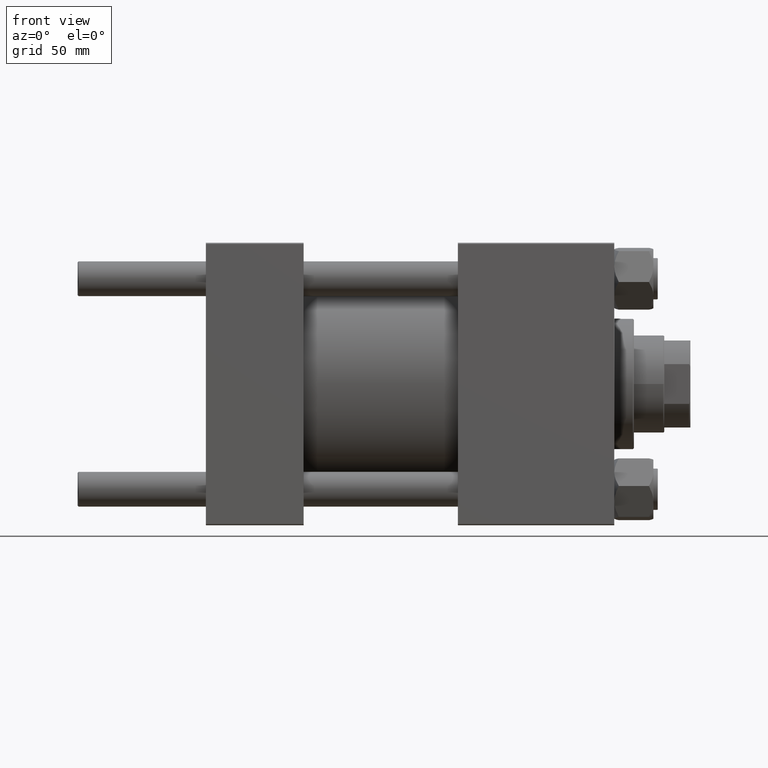
[diagram: clean part render]
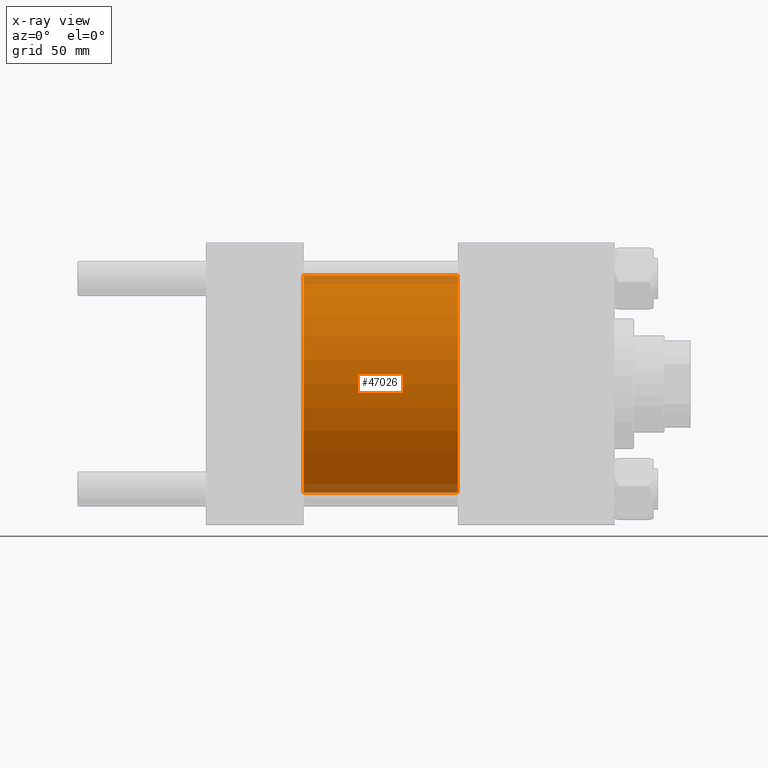
[diagram: x-ray — body ghosted, one internal face saturated and labeled with its STEP entity id]
A machine part, front view, then the same camera in x-ray: the body is ghosted and one INTERNAL B-rep face — a face not visible from any outside direction — is saturated and labeled: STEP entity #47026.
In plain terms, the highlighted cylindrical surface (partial cylindrical patch) has radius 50 mm, axis along (-1, -0, -0).
Its self-contained STEP definition (entity closure, byte-faithful):
#2620 = DIRECTION ( 'NONE',  ( 0.000000000000000000, 0.000000000000000000, 1.000000000000000000 ) ) ;
#3687 = LINE ( 'NONE', #30409, #38881 ) ;
#4029 = EDGE_CURVE ( 'NONE', #18524, #47794, #13488, .T. ) ;
#5844 = ORIENTED_EDGE ( 'NONE', *, *, #19160, .F. ) ;
#8840 = CIRCLE ( 'NONE', #31566, 50.00000000000000000 ) ;
#9482 = EDGE_CURVE ( 'NONE', #47794, #13576, #3687, .T. ) ;
#11507 = CARTESIAN_POINT ( 'NONE',  ( 45.00000000000000000, 0.000000000000000000, 0.000000000000000000 ) ) ;
#12995 = DIRECTION ( 'NONE',  ( -1.000000000000000000, -0.000000000000000000, -0.000000000000000000 ) ) ;
#13488 = CIRCLE ( 'NONE', #18365, 50.00000000000000000 ) ;
#13576 = VERTEX_POINT ( 'NONE', #25811 ) ;
#14065 = FACE_OUTER_BOUND ( 'NONE', #14636, .T. ) ;
#14636 = EDGE_LOOP ( 'NONE', ( #27476, #21863, #35323, #5844 ) ) ;
#14814 = DIRECTION ( 'NONE',  ( 0.000000000000000000, 0.000000000000000000, -1.000000000000000000 ) ) ;
#18365 = AXIS2_PLACEMENT_3D ( 'NONE', #47061, #40683, #43744 ) ;
#18524 = VERTEX_POINT ( 'NONE', #28703 ) ;
#18939 = EDGE_CURVE ( 'NONE', #29413, #13576, #8840, .T. ) ;
#19160 = EDGE_CURVE ( 'NONE', #18524, #29413, #32345, .T. ) ;
#21863 = ORIENTED_EDGE ( 'NONE', *, *, #9482, .T. ) ;
#22648 = VECTOR ( 'NONE', #12995, 1000.000000000000000 ) ;
#25811 = CARTESIAN_POINT ( 'NONE',  ( 45.00000000000000000, 6.123233995736766085E-15, -50.00000000000000000 ) ) ;
#27476 = ORIENTED_EDGE ( 'NONE', *, *, #4029, .T. ) ;
#28703 = CARTESIAN_POINT ( 'NONE',  ( 115.9999999999999858, 0.000000000000000000, 50.00000000000000000 ) ) ;
#28845 = CARTESIAN_POINT ( 'NONE',  ( 115.9999999999999858, 6.123233995736766085E-15, -50.00000000000000000 ) ) ;
#29344 = CYLINDRICAL_SURFACE ( 'NONE', #34432, 50.00000000000000000 ) ;
#29413 = VERTEX_POINT ( 'NONE', #42644 ) ;
#30409 = CARTESIAN_POINT ( 'NONE',  ( 115.9999999999999858, 6.123233995736766085E-15, -50.00000000000000000 ) ) ;
#31566 = AXIS2_PLACEMENT_3D ( 'NONE', #11507, #37480, #14814 ) ;
#32345 = LINE ( 'NONE', #47889, #22648 ) ;
#33664 = CARTESIAN_POINT ( 'NONE',  ( 115.9999999999999858, 0.000000000000000000, 0.000000000000000000 ) ) ;
#34432 = AXIS2_PLACEMENT_3D ( 'NONE', #33664, #49463, #2620 ) ;
#35323 = ORIENTED_EDGE ( 'NONE', *, *, #18939, .F. ) ;
#37480 = DIRECTION ( 'NONE',  ( 1.000000000000000000, 0.000000000000000000, 0.000000000000000000 ) ) ;
#38804 = DIRECTION ( 'NONE',  ( -1.000000000000000000, -0.000000000000000000, -0.000000000000000000 ) ) ;
#38881 = VECTOR ( 'NONE', #38804, 1000.000000000000000 ) ;
#40683 = DIRECTION ( 'NONE',  ( 1.000000000000000000, 0.000000000000000000, 0.000000000000000000 ) ) ;
#42644 = CARTESIAN_POINT ( 'NONE',  ( 45.00000000000000000, 0.000000000000000000, 50.00000000000000000 ) ) ;
#43744 = DIRECTION ( 'NONE',  ( 0.000000000000000000, 0.000000000000000000, -1.000000000000000000 ) ) ;
#47026 = ADVANCED_FACE ( 'NONE', ( #14065 ), #29344, .F. ) ;
#47061 = CARTESIAN_POINT ( 'NONE',  ( 115.9999999999999858, 0.000000000000000000, 0.000000000000000000 ) ) ;
#47794 = VERTEX_POINT ( 'NONE', #28845 ) ;
#47889 = CARTESIAN_POINT ( 'NONE',  ( 115.9999999999999858, 0.000000000000000000, 50.00000000000000000 ) ) ;
#49463 = DIRECTION ( 'NONE',  ( -1.000000000000000000, -0.000000000000000000, -0.000000000000000000 ) ) ;